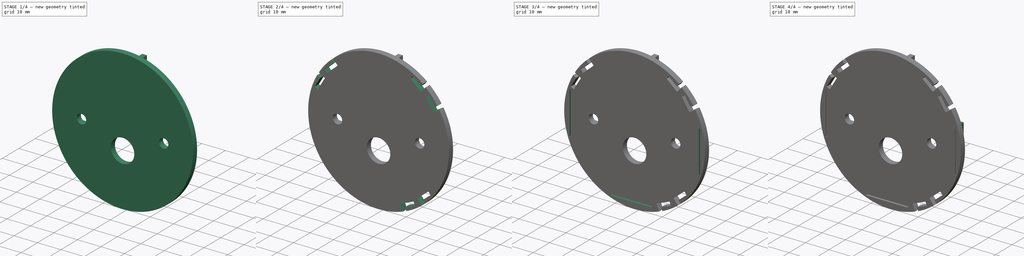
[diagram: build sequence overview — one tinted view per stage of 4, left to right]
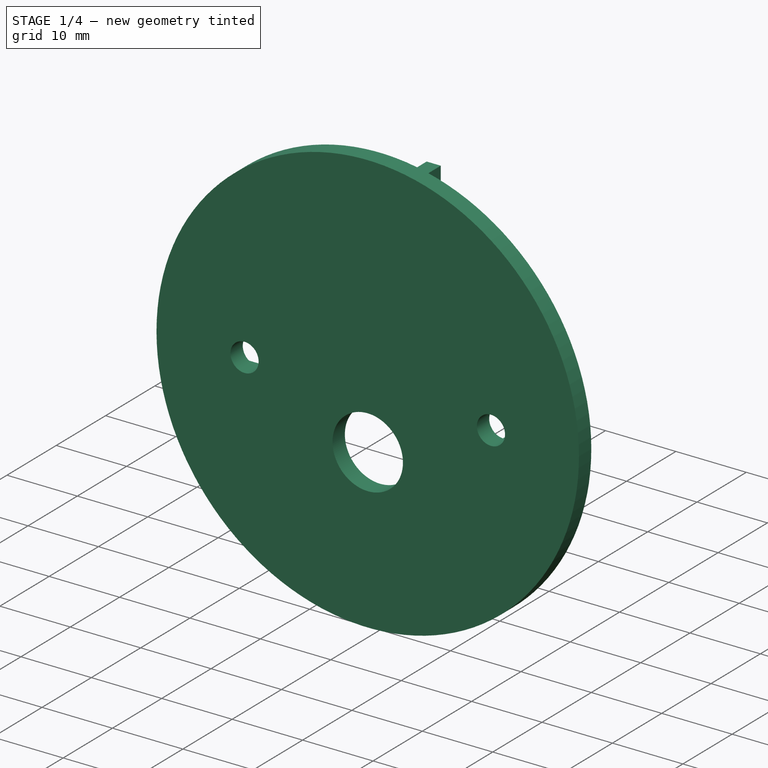
[diagram: stage 1 of 4 — iso view after this stage's code; geometry added in this stage tinted green]
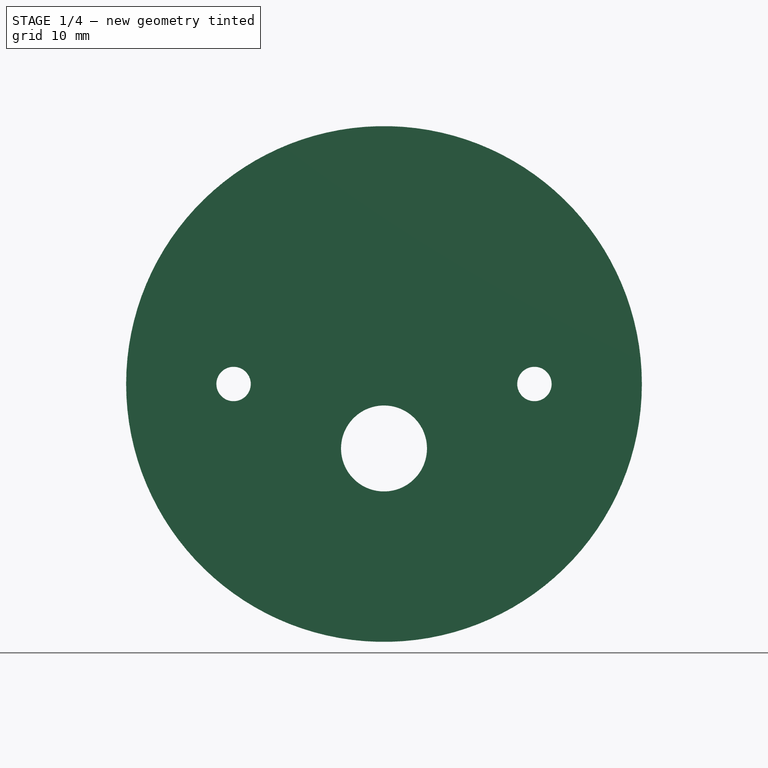
[diagram: stage 1 of 4 — front view after this stage's code; geometry added in this stage tinted green]
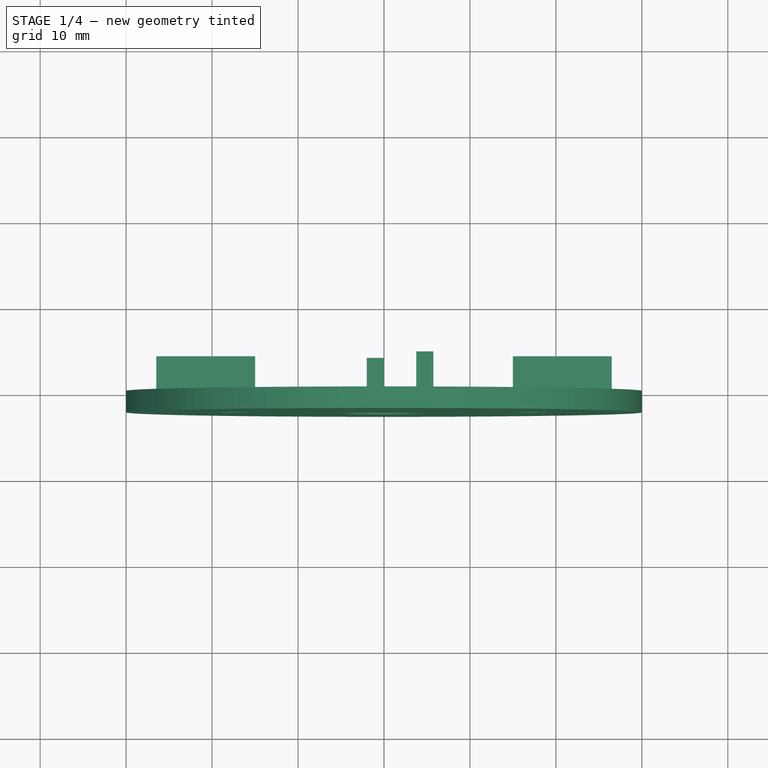
[diagram: stage 1 of 4 — top view after this stage's code; geometry added in this stage tinted green]
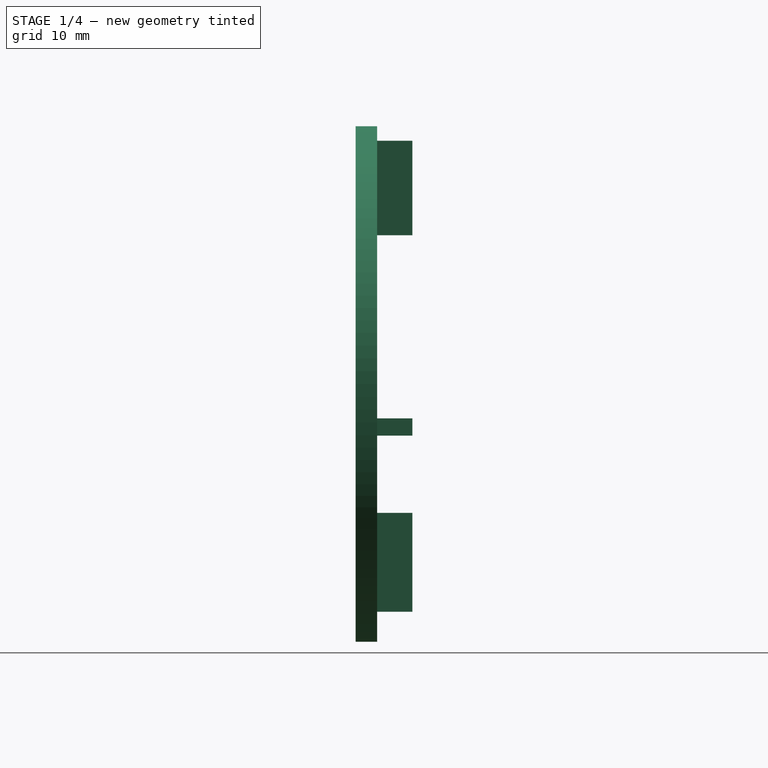
[diagram: stage 1 of 4 — right view after this stage's code; geometry added in this stage tinted green]
FCSTD DOCUMENT  (FreeCAD 0.18.4R)
Label: platform_top_pad
License: All rights reserved
LicenseURL: http://en.wikipedia.org/wiki/All_rights_reserved
objects: Sketcher::SketchObject×7, PartDesign::Pad×4, PartDesign::Pocket×4, PartDesign::PolarPattern×1, PartDesign::Body×1
note: 25 computed .brp shape members not serialized (recipe doc carries the construction recipe); baked Part::Feature solids carry a one-line shape summary decoded from their .brp

FEATURE [Sketcher::SketchObject] Sketch
  MapMode = 5
  Placement = pos=(0,0,0) rot=(1,0,0;1.5708rad)
  Support = -> [XZ_Plane]
  sketch-geometry (8):
    g0: Circle CenterX=0 CenterY=0 CenterZ=0 NormalX=0 NormalY=0 NormalZ=1 AngleXU=0 Radius=30
    g1: GeomPoint X=0 Y=-7.5 Z=0
    g2: Circle [constr] CenterX=0 CenterY=0 CenterZ=0 NormalX=0 NormalY=0 NormalZ=1 AngleXU=0 Radius=14
    g3: Circle CenterX=0 CenterY=-7.5 CenterZ=0 NormalX=0 NormalY=0 NormalZ=1 AngleXU=0 Radius=5
    g4: GeomPoint X=-17.5 Y=0 Z=0
    g5: GeomPoint X=17.5 Y=0 Z=0
    g6: Circle CenterX=-17.5 CenterY=0 CenterZ=0 NormalX=0 NormalY=0 NormalZ=1 AngleXU=0 Radius=2
    g7: Circle CenterX=17.5 CenterY=0 CenterZ=0 NormalX=0 NormalY=0 NormalZ=1 AngleXU=0 Radius=2
  constraints (16):
    c: Coincident(g0,g-1)
    c: Diameter(g0) = 60
    c: PointOnObject(g1,g-2)
    c: DistanceY(g1,g0) = 7.5
    c: Coincident(g2,g0)
    c: Diameter(g2) = 28
    c: Coincident(g3,g1)
    c: Diameter(g3) = 10
    c: PointOnObject(g4,g-1)
    c: PointOnObject(g5,g-1)
    c: DistanceX(g4,g0) = 17.5
    c: DistanceX(g0,g5) = 17.5
    c: Coincident(g6,g4)
    c: Coincident(g7,g5)
    c: Diameter(g6) = 4
    c: Diameter(g7) = 4
FEATURE [PartDesign::Pad] Pad
  Length = 2.5
  Length2 = 100
  Placement = pos=(0,0,0) rot=(1,0,0;1.5708rad)
  Profile = -> Sketch
  Type = 0
FEATURE [Sketcher::SketchObject] Sketch001
  ExternalGeometry = -> [Pad]
  MapMode = 5
  Placement = pos=(0,0,0) rot=(-1,0,0;1.5708rad)
  Support = -> [Pad]
  sketch-geometry (16):
    g0: LineSegment StartX=26.5 StartY=4 StartZ=0 EndX=15 EndY=4 EndZ=0
    g1: LineSegment StartX=15 StartY=4 StartZ=0 EndX=15 EndY=6 EndZ=0
    g2: LineSegment StartX=15 StartY=6 StartZ=0 EndX=26.5 EndY=6 EndZ=0
    g3: LineSegment StartX=26.5 StartY=6 StartZ=0 EndX=26.5 EndY=4 EndZ=0
    g4: LineSegment StartX=-26.5 StartY=6 StartZ=0 EndX=-15 EndY=6 EndZ=0
    g5: LineSegment StartX=-15 StartY=6 StartZ=0 EndX=-15 EndY=4 EndZ=0
    g6: LineSegment StartX=-15 StartY=4 StartZ=0 EndX=-26.5 EndY=4 EndZ=0
    g7: LineSegment StartX=-26.5 StartY=4 StartZ=0 EndX=-26.5 EndY=6 EndZ=0
    g8: LineSegment StartX=3.75 StartY=-17.3 StartZ=0 EndX=5.75 EndY=-17.3 EndZ=0
    g9: LineSegment StartX=5.75 StartY=-17.3 StartZ=0 EndX=5.75 EndY=-28.3 EndZ=0
    g10: LineSegment StartX=5.75 StartY=-28.3 StartZ=0 EndX=3.75 EndY=-28.3 EndZ=0
    g11: LineSegment StartX=3.75 StartY=-28.3 StartZ=0 EndX=3.75 EndY=-17.3 EndZ=0
    g12: LineSegment StartX=-2 StartY=26.5 StartZ=0 EndX=0 EndY=26.5 EndZ=0
    g13: LineSegment StartX=0 StartY=26.5 StartZ=0 EndX=0 EndY=15 EndZ=0
    g14: LineSegment StartX=0 StartY=15 StartZ=0 EndX=-2 EndY=15 EndZ=0
    g15: LineSegment StartX=-2 StartY=15 StartZ=0 EndX=-2 EndY=26.5 EndZ=0
  constraints (48):
    c: Coincident(g0,g1)
    c: Coincident(g1,g2)
    c: Coincident(g2,g3)
    c: Coincident(g3,g0)
    c: Horizontal(g0)
    c: Horizontal(g2)
    c: Vertical(g1)
    c: Vertical(g3)
    c: DistanceX(g0,g0) = 11.5
    c: DistanceY(g1,g1) = 2
    c: Coincident(g4,g5)
    c: Coincident(g5,g6)
    c: Coincident(g6,g7)
    c: Coincident(g7,g4)
    c: Horizontal(g4)
    c: Horizontal(g6)
    c: Vertical(g5)
    c: Vertical(g7)
    c: DistanceY(g7,g7) = 2
    c: DistanceX(g6,g6) = 11.5
    c: DistanceX(g4,g-1) = 15
    c: DistanceX(g-1,g1) = 15
    c: Coincident(g8,g9)
    c: Coincident(g9,g10)
    c: Coincident(g10,g11)
    c: Coincident(g11,g8)
    c: Horizontal(g8)
    c: Horizontal(g10)
    c: Vertical(g9)
    c: Vertical(g11)
    c: Coincident(g12,g13)
    c: Coincident(g13,g14)
    c: Coincident(g14,g15)
    c: Coincident(g15,g12)
    c: Horizontal(g12)
    c: Horizontal(g14)
    c: Vertical(g13)
    c: Vertical(g15)
    c: DistanceX(g12,g12) = 2
    c: DistanceX(g10,g10) = 2
    c: DistanceY(g13,g13) = 11.5
    c: DistanceY(g11,g11) = 11
    c: DistanceY(g-1,g13) = 15
    c: DistanceY(g8,g-1) = 17.3
    c: DistanceX(g13,g-1) = 0
    c: DistanceX(g-1,g8) = 3.75
    c: DistanceY(g-1,g5) = 4
    c: DistanceY(g-1,g0) = 4
FEATURE [PartDesign::Pad] Pad001
  BaseFeature = -> Pad
  Length = 4.1
  Length2 = 100
  Placement = pos=(0,0,0) rot=(1,0,0;1.5708rad)
  Profile = -> Sketch001
  Type = 0
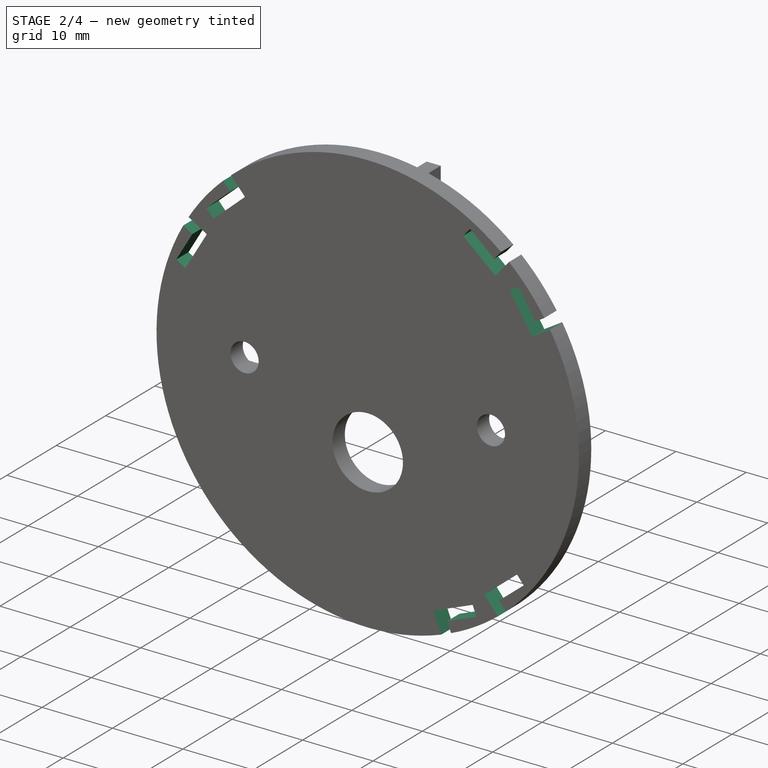
[diagram: stage 2 of 4 — iso view after this stage's code; geometry added in this stage tinted green]
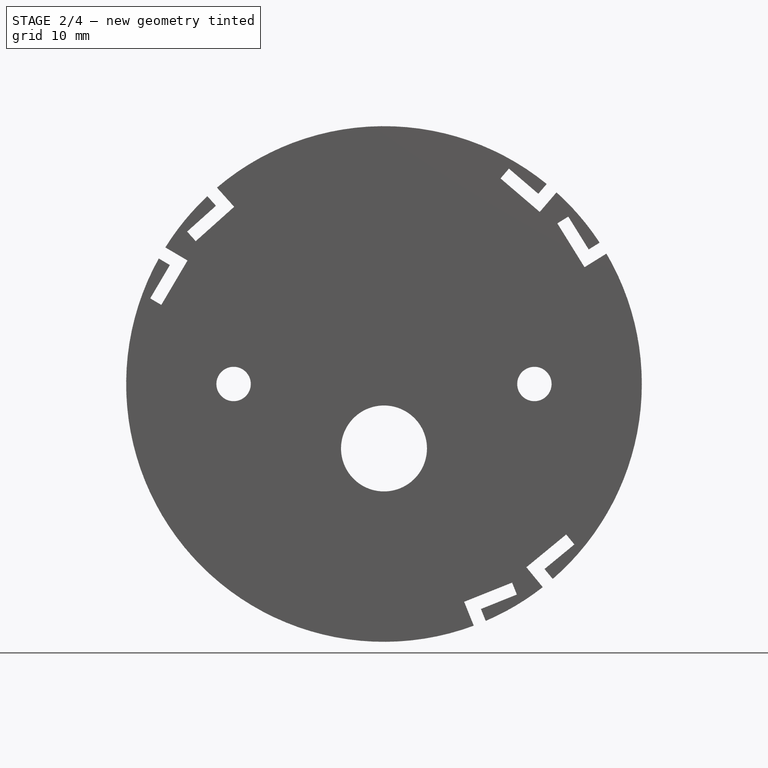
[diagram: stage 2 of 4 — front view after this stage's code; geometry added in this stage tinted green]
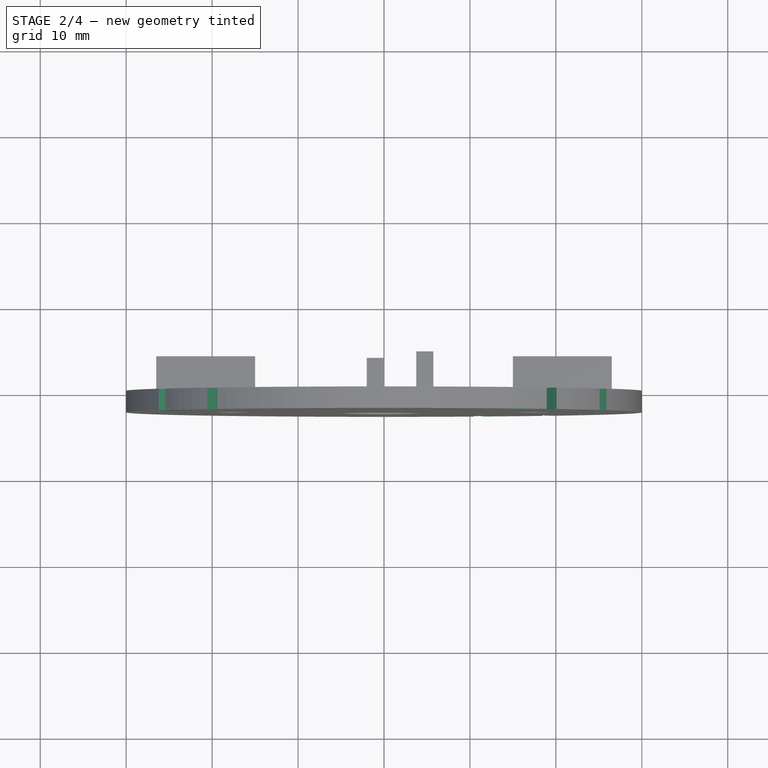
[diagram: stage 2 of 4 — top view after this stage's code; geometry added in this stage tinted green]
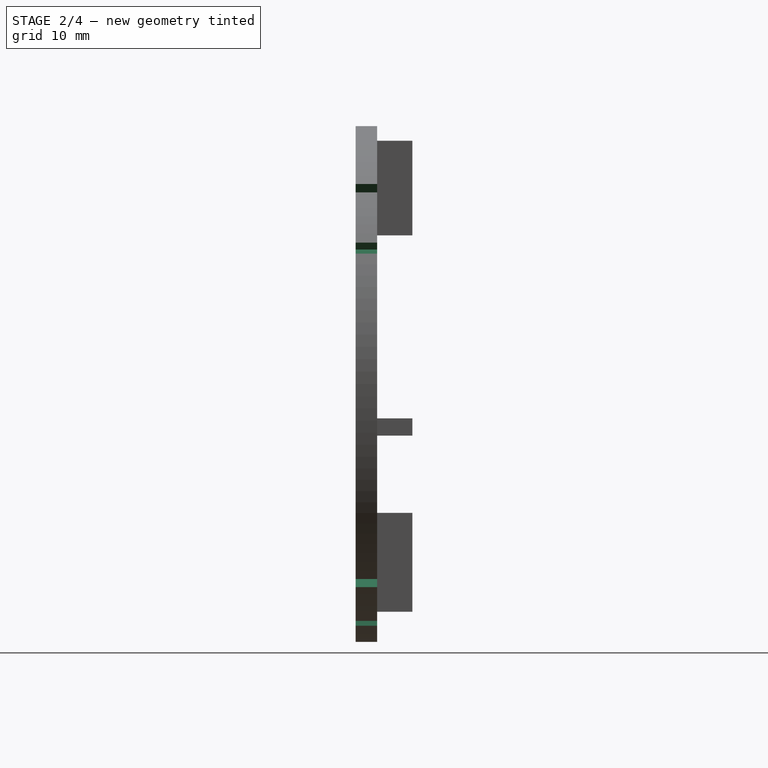
[diagram: stage 2 of 4 — right view after this stage's code; geometry added in this stage tinted green]
FEATURE [Sketcher::SketchObject] Sketch002
  MapMode = 5
  Placement = pos=(0,0,0) rot=(-1,0,0;1.5708rad)
  Support = -> [Pad001]
  sketch-geometry (12):
    g0: LineSegment StartX=-27.2026 StartY=-9.9656 StartZ=0 EndX=-24.9146 EndY=-13.8405 EndZ=0
    g1: LineSegment StartX=-25.911 StartY=-9.20292 StartZ=0 EndX=-22.8603 EndY=-14.3695 EndZ=0
    g2: LineSegment StartX=-27.2026 StartY=-9.9656 StartZ=0 EndX=-25.911 EndY=-9.20292 EndZ=0
    g3: LineSegment StartX=-27.0673 StartY=-15.1116 StartZ=0 EndX=-26.3046 EndY=-16.4033 EndZ=0
    g4: LineSegment StartX=-27.0673 StartY=-15.1116 StartZ=0 EndX=-24.9146 EndY=-13.8405 EndZ=0
    g5: LineSegment StartX=-26.3046 StartY=-16.4033 StartZ=0 EndX=-22.8603 EndY=-14.3695 EndZ=0
    g6: LineSegment StartX=-22.9067 StartY=-17.7363 StartZ=0 EndX=-19.5526 EndY=-20.7362 EndZ=0
    g7: LineSegment StartX=-21.9068 StartY=-16.6183 StartZ=0 EndX=-17.4345 EndY=-20.6182 EndZ=0
    g8: LineSegment StartX=-22.9067 StartY=-17.7363 StartZ=0 EndX=-21.9068 EndY=-16.6183 EndZ=0
    g9: LineSegment StartX=-21.2192 StartY=-22.5997 StartZ=0 EndX=-20.1012 EndY=-23.5997 EndZ=0
    g10: LineSegment StartX=-21.2192 StartY=-22.5997 StartZ=0 EndX=-19.5526 EndY=-20.7362 EndZ=0
    g11: LineSegment StartX=-20.1012 StartY=-23.5997 StartZ=0 EndX=-17.4345 EndY=-20.6182 EndZ=0
  constraints (34):
    c: Parallel(g0,g1)
    c: Coincident(g2,g0)
    c: Coincident(g2,g1)
    c: Perpendicular(g0,g2)
    c: Distance(g1) = 6
    c: Distance(g1,g3) = 4
    c: Coincident(g3,g4)
    c: Parallel(g0,g3)
    c: Distance(g3) = 1.5
    c: Coincident(g0,g4)
    c: Distance(g0) = 4.5
    c: Coincident(g5,g3)
    c: Coincident(g5,g1)
    c: Parallel(g4,g5)
    c: Distance(g2) = 1.5
    c: Distance(g3,g-1) = 31
    c: Distance(g3,g-1) = 31
    c: Parallel(g6,g7)
    c: Coincident(g8,g6)
    c: Coincident(g8,g7)
    c: Perpendicular(g6,g8)
    c: Equal(g1,g7) = 6
    c: Distance(g7,g9) = 4
    c: Coincident(g9,g10)
    c: Parallel(g6,g9)
    c: Equal(g3,g9) = 1.5
    c: Coincident(g6,g10)
    c: Equal(g0,g6) = 4.5
    c: Coincident(g11,g9)
    c: Coincident(g11,g7)
    c: Parallel(g10,g11)
    c: Equal(g2,g8) = 1.5
    c: Distance(g9,g-1) = 31
    c: Distance(g9,g-1) = 31
FEATURE [PartDesign::Pocket] Pocket
  BaseFeature = -> Pad001
  Length = 5
  Length2 = 100
  Placement = pos=(0,0,0) rot=(1,0,0;1.5708rad)
  Profile = -> Sketch002
  Type = 0
FEATURE [PartDesign::PolarPattern] PolarPattern
  Angle = 200
  Axis = -> Sketch002 [N_Axis]
  BaseFeature = -> Pocket
  Occurrences = 3
  Originals = -> [Pocket]
  Placement = pos=(0,0,0) rot=(1,0,0;1.5708rad)
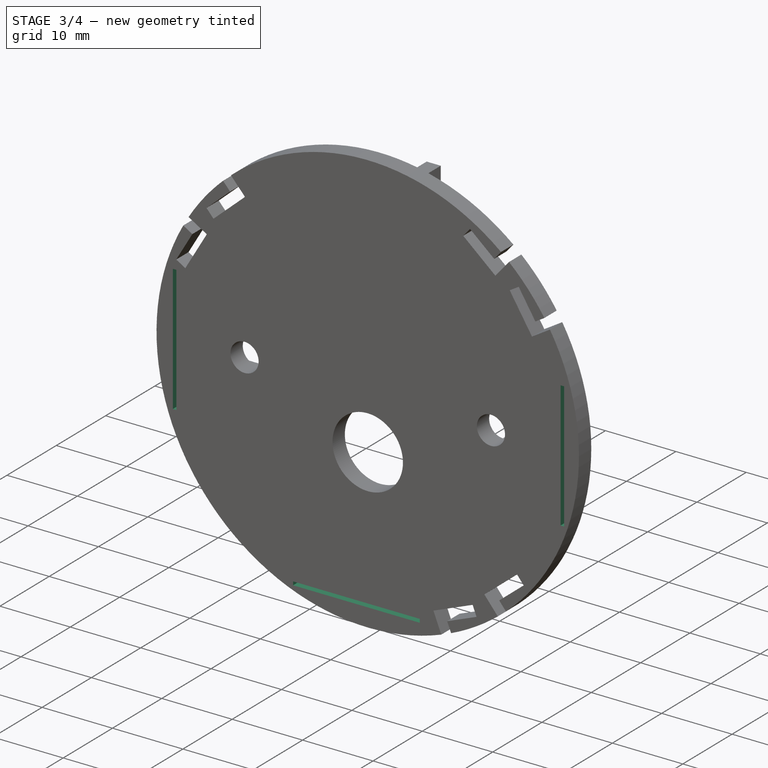
[diagram: stage 3 of 4 — iso view after this stage's code; geometry added in this stage tinted green]
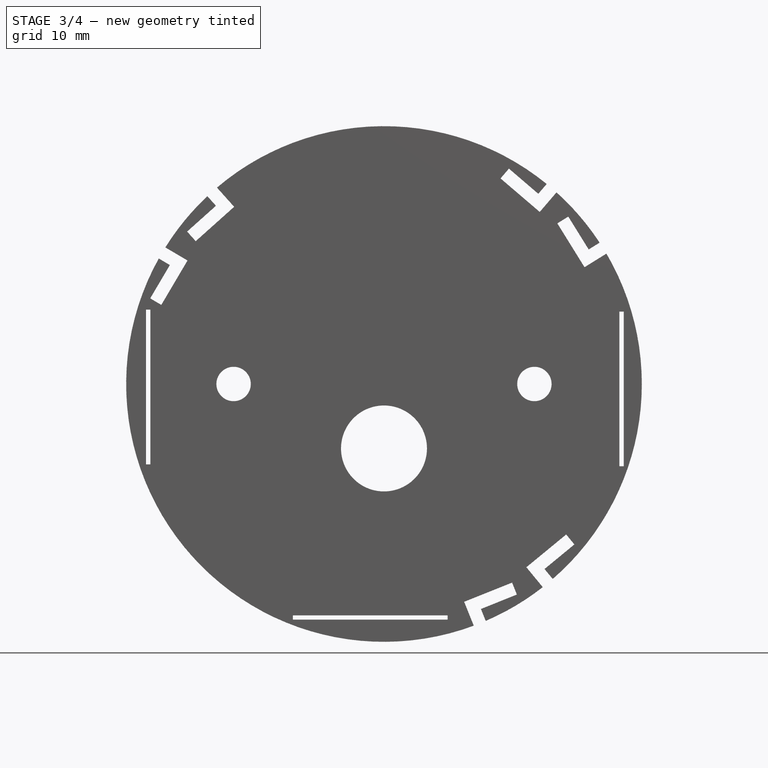
[diagram: stage 3 of 4 — front view after this stage's code; geometry added in this stage tinted green]
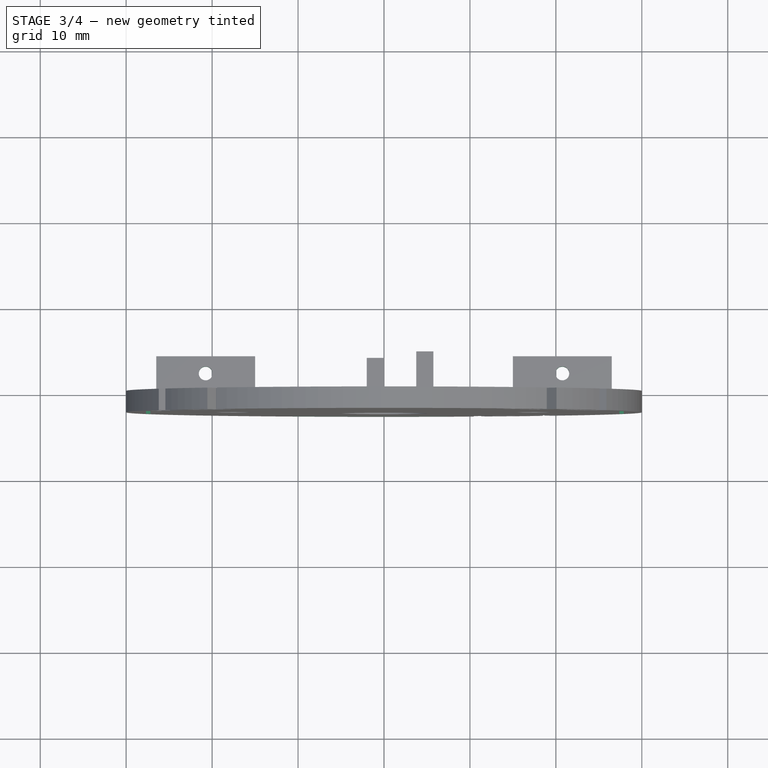
[diagram: stage 3 of 4 — top view after this stage's code; geometry added in this stage tinted green]
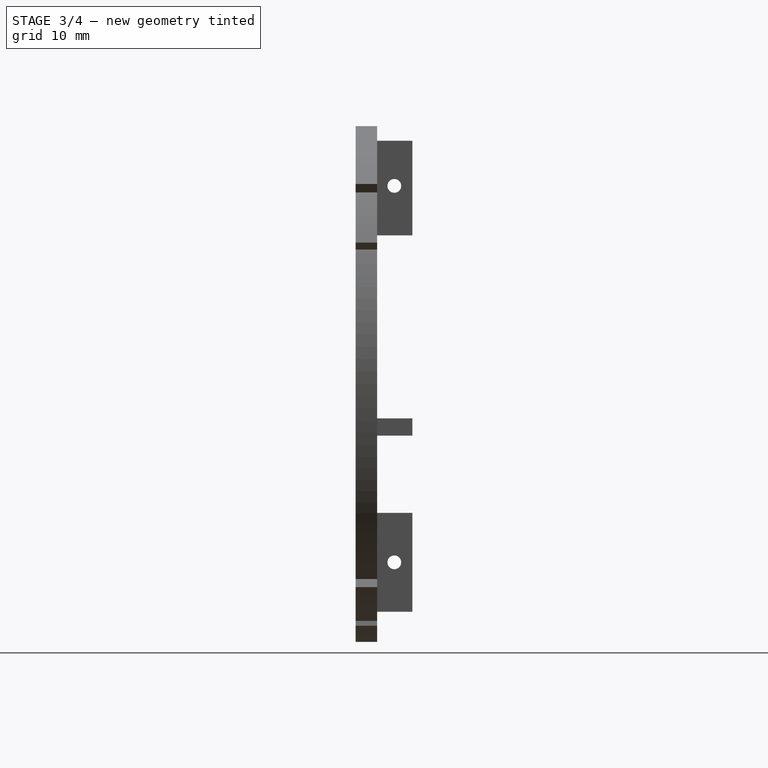
[diagram: stage 3 of 4 — right view after this stage's code; geometry added in this stage tinted green]
FEATURE [Sketcher::SketchObject] Sketch003
  ExternalGeometry = -> [PolarPattern]
  MapMode = 5
  Placement = pos=(-2,0,0) rot=(0.707107,0,-0.707107;3.14159rad)
  Support = -> [PolarPattern]
  sketch-geometry (2):
    g0: Circle CenterX=-23.05 CenterY=-2 CenterZ=0 NormalX=0 NormalY=0 NormalZ=1 AngleXU=0 Radius=0.8
    g1: Circle CenterX=20.75 CenterY=-2 CenterZ=0 NormalX=0 NormalY=0 NormalZ=1 AngleXU=0 Radius=0.8
  constraints (6):
    c: Diameter(g0) = 1.6
    c: Diameter(g1) = 1.6
    c: DistanceY(g0,g-4) = 2
    c: DistanceY(g1,g-5) = 2
    c: DistanceX(g-5,g1) = 5.75
    c: DistanceX(g0,g-4) = 5.75
FEATURE [PartDesign::Pocket] Pocket001
  BaseFeature = -> PolarPattern
  Length = 10
  Length2 = 100
  Placement = pos=(0,0,0) rot=(1,0,0;1.5708rad)
  Profile = -> Sketch003
  Type = 0
FEATURE [Sketcher::SketchObject] Sketch004
  ExternalGeometry = -> [Pocket001]
  MapMode = 5
  Placement = pos=(0,-2.2e-15,-4) rot=(0,0,1;3.14159rad)
  Support = -> [Pocket001]
  sketch-geometry (2):
    g0: Circle CenterX=20.75 CenterY=-2.1 CenterZ=0 NormalX=0 NormalY=0 NormalZ=1 AngleXU=0 Radius=0.8
    g1: Circle CenterX=-20.75 CenterY=-2.1 CenterZ=0 NormalX=0 NormalY=0 NormalZ=1 AngleXU=0 Radius=0.8
  constraints (6):
    c: Diameter(g1) = 1.6
    c: Diameter(g0) = 1.6
    c: DistanceX(g-4,g0) = 5.75
    c: DistanceX(g1,g-5) = 5.75
    c: DistanceY(g-6,g1) = 2
    c: DistanceY(g-4,g0) = 2
FEATURE [PartDesign::Pocket] Pocket002
  BaseFeature = -> Pocket001
  Length = 5
  Length2 = 100
  Placement = pos=(0,0,0) rot=(1,0,0;1.5708rad)
  Profile = -> Sketch004
  Type = 0
FEATURE [Sketcher::SketchObject] Sketch005
  MapMode = 5
  Placement = pos=(0,0,0) rot=(-1,0,0;1.5708rad)
  Support = -> [Pocket002]
  sketch-geometry (12):
    g0: LineSegment StartX=-27.6848 StartY=9.35309 StartZ=0 EndX=-27.1848 EndY=9.35309 EndZ=0
    g1: LineSegment StartX=-27.1848 StartY=9.35309 StartZ=0 EndX=-27.1848 EndY=-8.64691 EndZ=0
    g2: LineSegment StartX=-27.1848 StartY=-8.64691 StartZ=0 EndX=-27.6848 EndY=-8.64691 EndZ=0
    g3: LineSegment StartX=-27.6848 StartY=-8.64691 StartZ=0 EndX=-27.6848 EndY=9.35309 EndZ=0
    g4: LineSegment StartX=27.3938 StartY=9.57669 StartZ=0 EndX=27.8938 EndY=9.57669 EndZ=0
    g5: LineSegment StartX=27.8938 StartY=9.57669 StartZ=0 EndX=27.8938 EndY=-8.42331 EndZ=0
    g6: LineSegment StartX=27.8938 StartY=-8.42331 StartZ=0 EndX=27.3938 EndY=-8.42331 EndZ=0
    g7: LineSegment StartX=27.3938 StartY=-8.42331 StartZ=0 EndX=27.3938 EndY=9.57669 EndZ=0
    g8: LineSegment StartX=-10.6013 StartY=27.417 StartZ=0 EndX=7.39875 EndY=27.417 EndZ=0
    g9: LineSegment StartX=7.39875 StartY=27.417 StartZ=0 EndX=7.39875 EndY=26.917 EndZ=0
    g10: LineSegment StartX=7.39875 StartY=26.917 StartZ=0 EndX=-10.6013 EndY=26.917 EndZ=0
    g11: LineSegment StartX=-10.6013 StartY=26.917 StartZ=0 EndX=-10.6013 EndY=27.417 EndZ=0
  constraints (30):
    c: Coincident(g0,g1)
    c: Coincident(g1,g2)
    c: Coincident(g2,g3)
    c: Coincident(g3,g0)
    c: Horizontal(g0)
    c: Horizontal(g2)
    c: Vertical(g1)
    c: Vertical(g3)
    c: DistanceX(g0,g0) = 0.5
    c: DistanceY(g1,g1) = 18
    c: Coincident(g4,g5)
    c: Coincident(g5,g6)
    c: Coincident(g6,g7)
    c: Coincident(g7,g4)
    c: Horizontal(g4)
    c: Horizontal(g6)
    c: Vertical(g5)
    c: Vertical(g7)
    c: Equal(g0,g4) = 0.5
    c: Equal(g1,g5) = 18
    c: Coincident(g8,g9)
    c: Coincident(g9,g10)
    c: Coincident(g10,g11)
    c: Coincident(g11,g8)
    c: Horizontal(g8)
    c: Horizontal(g10)
    c: Vertical(g9)
    c: Vertical(g11)
    c: DistanceX(g8,g8) = 18
    c: DistanceY(g9,g9) = 0.5
FEATURE [PartDesign::Pocket] Pocket003
  BaseFeature = -> Pocket002
  Length = 5
  Length2 = 100
  Placement = pos=(0,0,0) rot=(1,0,0;1.5708rad)
  Profile = -> Sketch005
  Type = 0
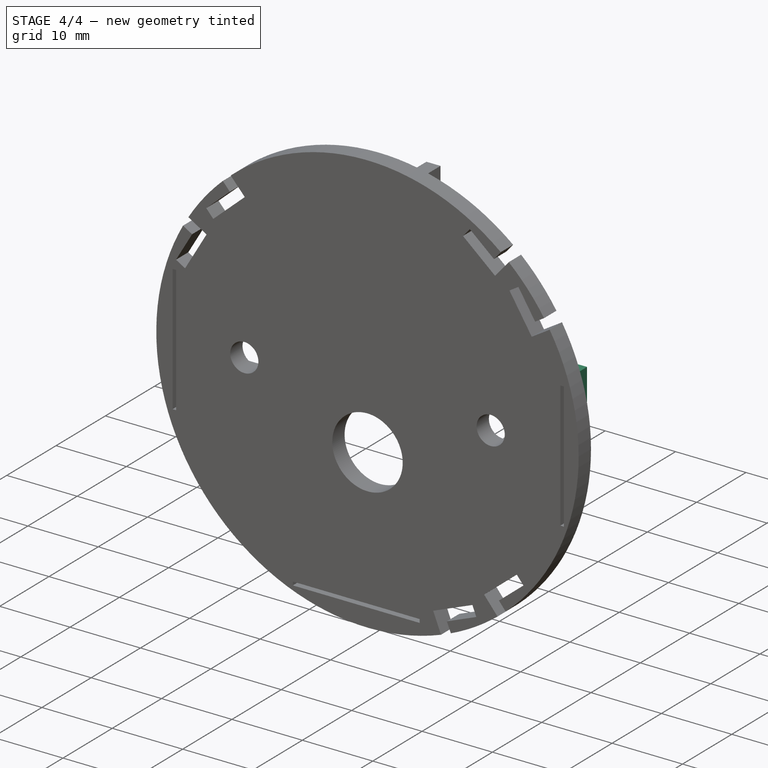
[diagram: stage 4 of 4 — iso view after this stage's code; geometry added in this stage tinted green]
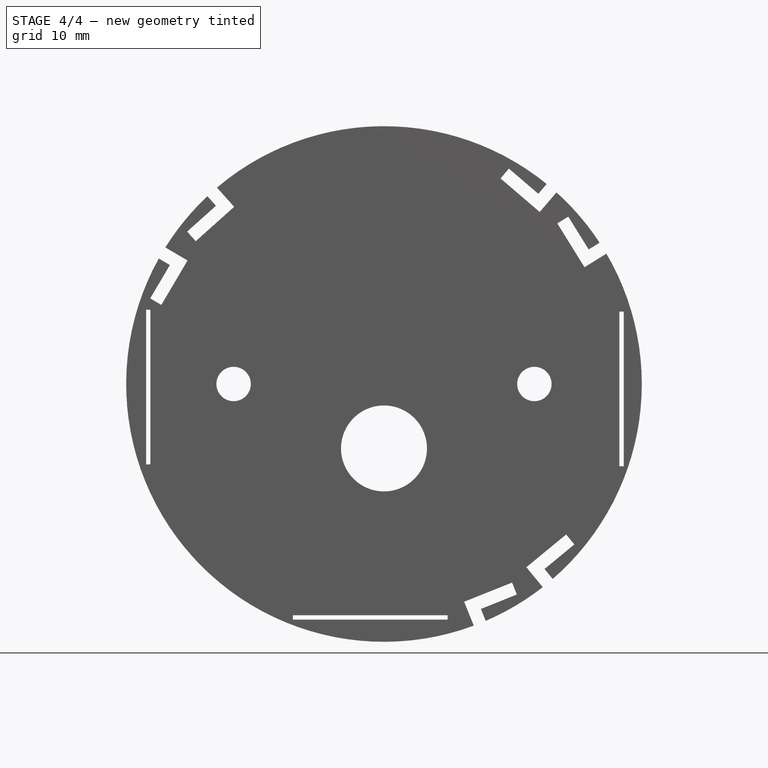
[diagram: stage 4 of 4 — front view after this stage's code; geometry added in this stage tinted green]
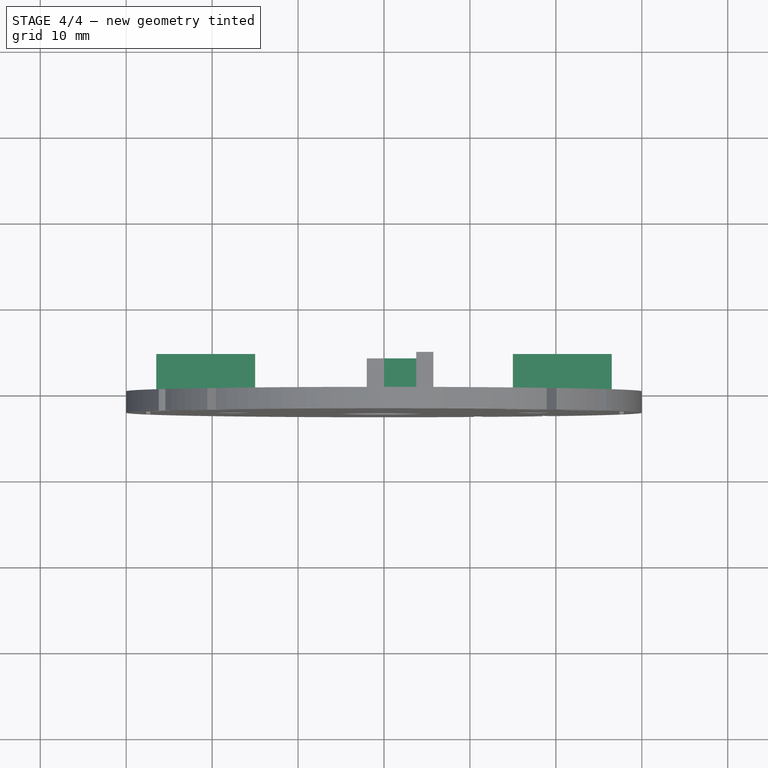
[diagram: stage 4 of 4 — top view after this stage's code; geometry added in this stage tinted green]
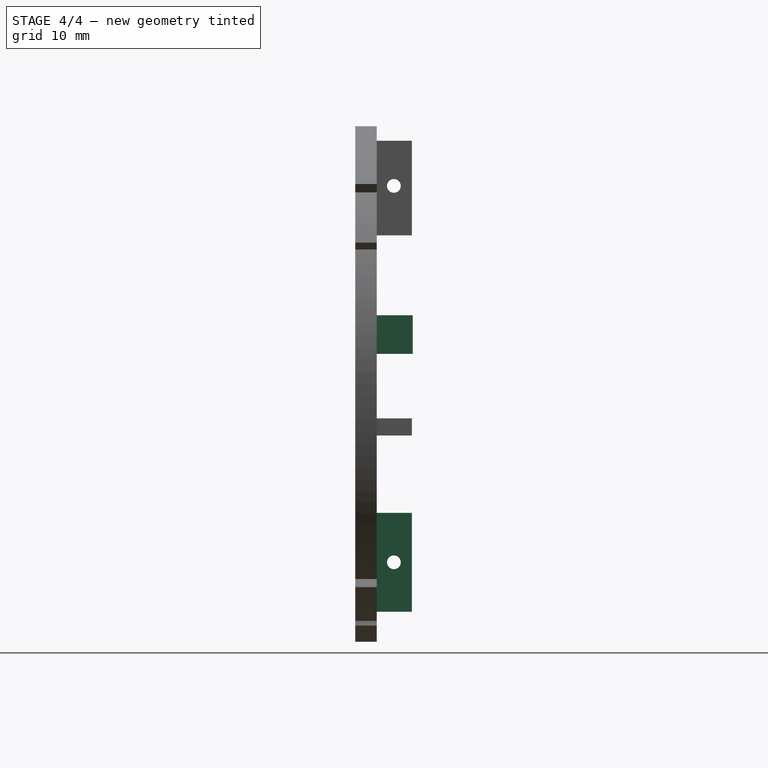
[diagram: stage 4 of 4 — right view after this stage's code; geometry added in this stage tinted green]
FEATURE [Sketcher::SketchObject] Sketch006
  ExternalGeometry = -> [Pocket003]
  MapMode = 5
  Placement = pos=(0,0,0) rot=(-1,0,0;1.5708rad)
  Support = -> [Pocket003]
  sketch-geometry (8):
    g0: LineSegment StartX=-26.5 StartY=-3.5 StartZ=0 EndX=-15 EndY=-3.5 EndZ=0
    g1: LineSegment StartX=-15 StartY=-3.5 StartZ=0 EndX=-15 EndY=-8 EndZ=0
    g2: LineSegment StartX=-15 StartY=-8 StartZ=0 EndX=-26.5 EndY=-8 EndZ=0
    g3: LineSegment StartX=-26.5 StartY=-8 StartZ=0 EndX=-26.5 EndY=-3.5 EndZ=0
    g4: LineSegment StartX=15 StartY=-3.5 StartZ=0 EndX=26.5 EndY=-3.5 EndZ=0
    g5: LineSegment StartX=26.5 StartY=-3.5 StartZ=0 EndX=26.5 EndY=-8 EndZ=0
    g6: LineSegment StartX=26.5 StartY=-8 StartZ=0 EndX=15 EndY=-8 EndZ=0
    g7: LineSegment StartX=15 StartY=-8 StartZ=0 EndX=15 EndY=-3.5 EndZ=0
  constraints (24):
    c: Coincident(g0,g1)
    c: Coincident(g1,g2)
    c: Coincident(g2,g3)
    c: Coincident(g3,g0)
    c: Horizontal(g0)
    c: Horizontal(g2)
    c: Vertical(g1)
    c: Vertical(g3)
    c: Coincident(g4,g5)
    c: Coincident(g5,g6)
    c: Coincident(g6,g7)
    c: Coincident(g7,g4)
    c: Horizontal(g4)
    c: Horizontal(g6)
    c: Vertical(g5)
    c: Vertical(g7)
    c: DistanceX(g0,g0) = 11.5
    c: DistanceX(g4,g4) = 11.5
    c: DistanceY(g1,g1) = 4.5
    c: DistanceY(g7,g7) = 4.5
    c: Vertical(g-3,g0)
    c: DistanceY(g0,g-3) = 7.5
    c: DistanceY(g4,g-4) = 7.5
    c: Vertical(g-4,g4)
FEATURE [PartDesign::Pad] Pad002
  BaseFeature = -> Pocket003
  Length = 4.2
  Length2 = 100
  Placement = pos=(0,0,0) rot=(1,0,0;1.5708rad)
  Profile = -> Sketch006
  Type = 0
FEATURE [PartDesign::Pad] Pad003
  BaseFeature = -> Pad002
  Length = 5
  Length2 = 100
  Placement = pos=(0,0,0) rot=(1,0,0;1.5708rad)
  Profile = -> Pad002 [Face42]
  Type = 0
FEATURE [PartDesign::Body] Body
  Group = -> [Sketch,Pad,Sketch001,Pad001,Sketch002,Pocket,PolarPattern,Sketch003,Pocket001,Sketch004,Pocket002,Sketch005,Pocket003,Sketch006,Pad002,Pad003]
  Origin = -> Origin
  Tip = -> Pad003
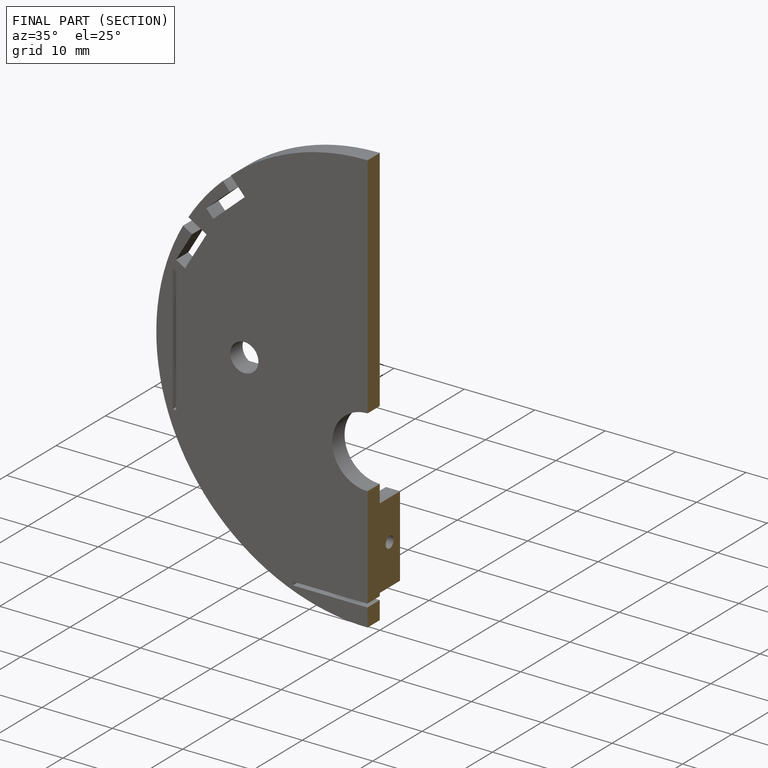
[diagram: finished part — half-section view (interior)]
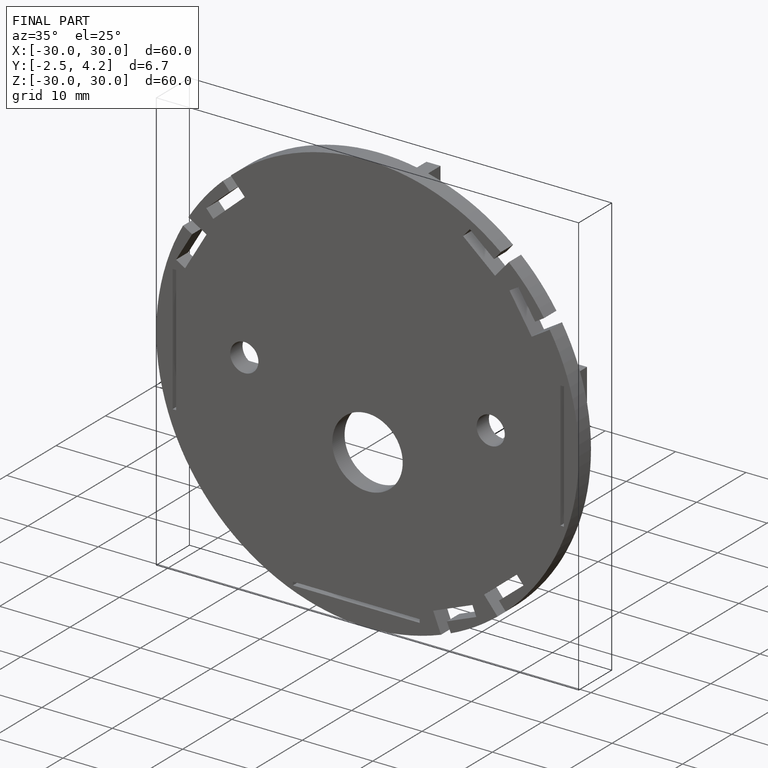
[diagram: finished part — iso view with bounding-box wireframe]
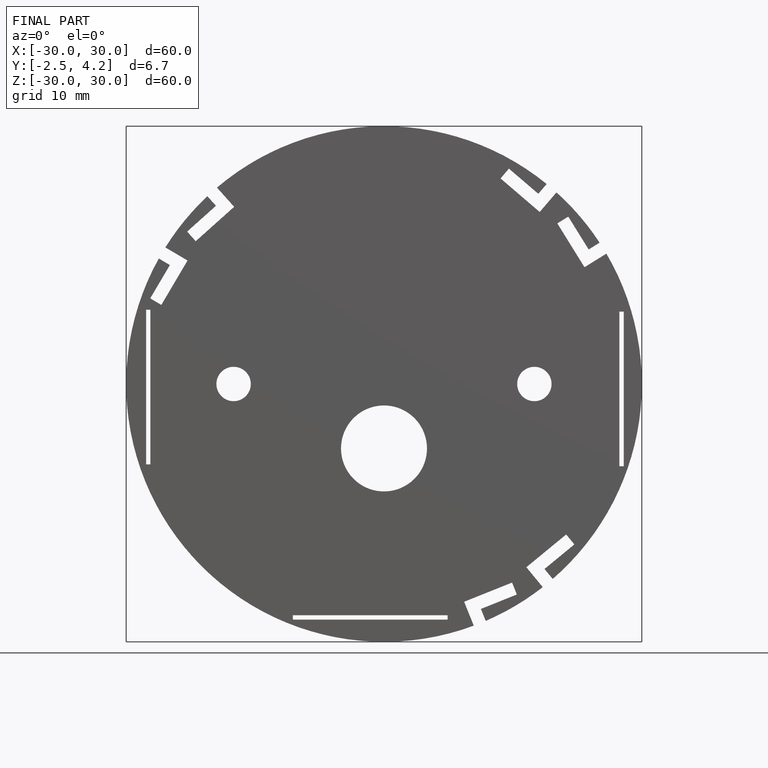
[diagram: finished part — front view with bounding-box wireframe]
